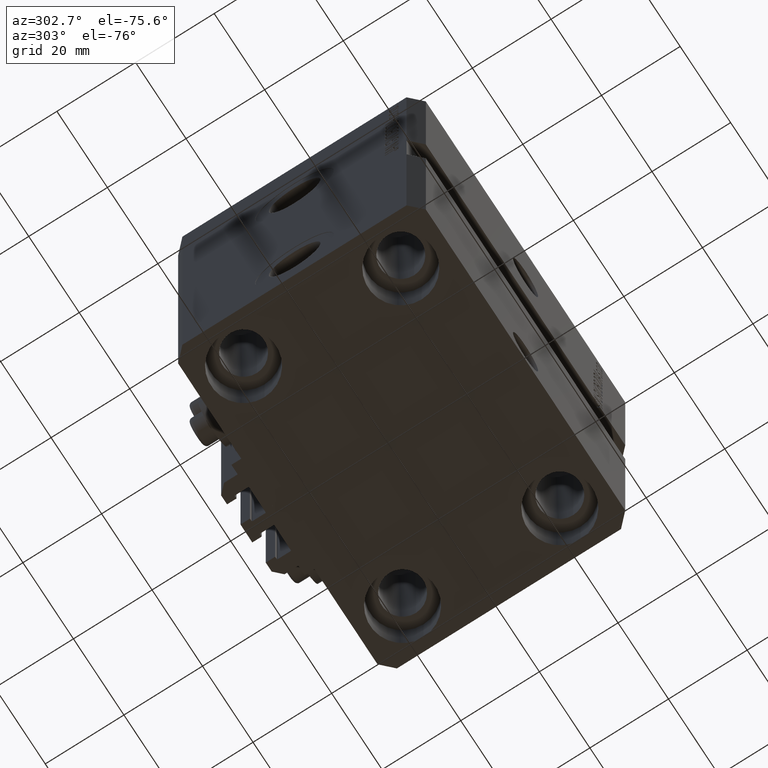
[diagram: clean part render]
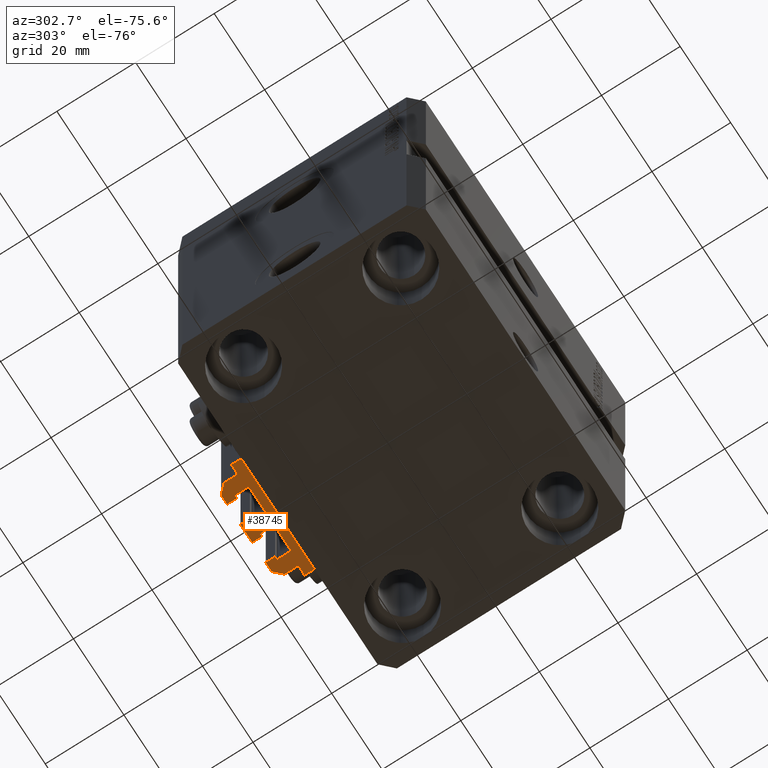
[diagram: same view with one face highlighted and labeled with its STEP entity id]
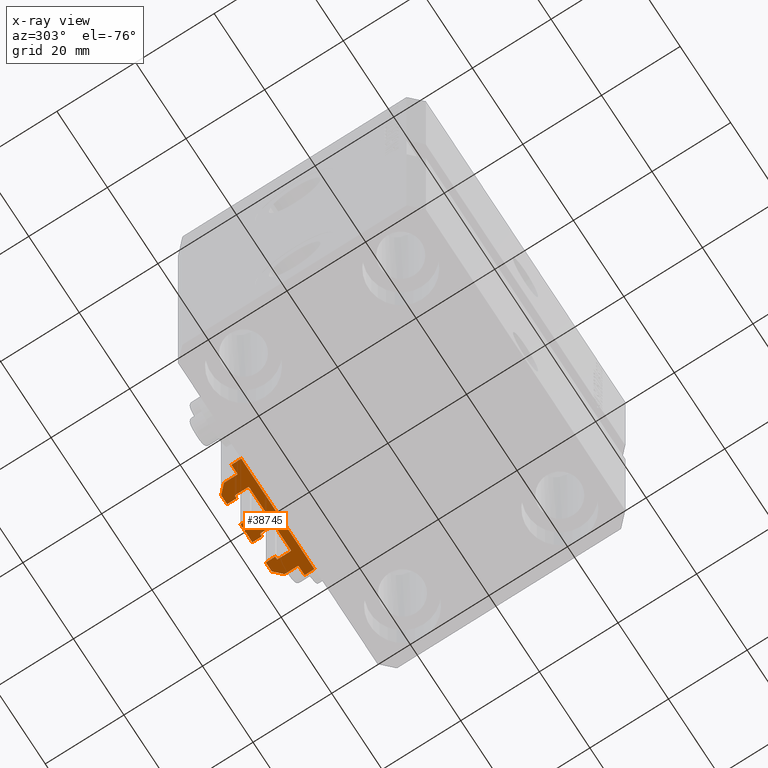
[diagram: x-ray of the same camera — body ghosted, the highlighted face saturated]
A machine part, auxiliary view. The second image highlights one B-rep face of the part: STEP entity #38745.
The next image is the same camera in x-ray: the body ghosted, the highlighted face saturated — about 0% of this face is hidden behind the body in this view.
In plain terms, the highlighted planar face has unit normal (0, 0, 1).
Its self-contained STEP definition (entity closure, byte-faithful):
#26 = DIRECTION ( 'NONE',  ( 1.000000000000000000, 0.000000000000000000, 0.000000000000000000 ) ) ;
#168 = EDGE_CURVE ( 'NONE', #10941, #5543, #37145, .T. ) ;
#237 = CARTESIAN_POINT ( 'NONE',  ( 1.800000000000000933, 37.10000000000000853, -93.00000000000000000 ) ) ;
#250 = CIRCLE ( 'NONE', #26289, 0.1999999999999994282 ) ;
#543 = VERTEX_POINT ( 'NONE', #24593 ) ;
#904 = VERTEX_POINT ( 'NONE', #21566 ) ;
#918 = EDGE_CURVE ( 'NONE', #19733, #44680, #3296, .T. ) ;
#937 = VECTOR ( 'NONE', #7527, 1000.000000000000000 ) ;
#1151 = CIRCLE ( 'NONE', #4978, 0.1999999999999996503 ) ;
#1344 = LINE ( 'NONE', #44890, #17115 ) ;
#1385 = LINE ( 'NONE', #34359, #42739 ) ;
#1897 = CARTESIAN_POINT ( 'NONE',  ( -12.00000000000000000, 37.49999999999999289, -93.00000000000000000 ) ) ;
#1911 = EDGE_CURVE ( 'NONE', #14663, #28280, #16781, .T. ) ;
#1923 = CARTESIAN_POINT ( 'NONE',  ( -8.400000000000000355, 36.89999999999999858, -93.00000000000000000 ) ) ;
#1964 = CARTESIAN_POINT ( 'NONE',  ( -1.800000000000000933, 37.10000000000000853, -93.00000000000000000 ) ) ;
#2005 = ORIENTED_EDGE ( 'NONE', *, *, #43675, .T. ) ;
#2328 = ORIENTED_EDGE ( 'NONE', *, *, #5247, .T. ) ;
#2785 = AXIS2_PLACEMENT_3D ( 'NONE', #36960, #26597, #4003 ) ;
#3296 = LINE ( 'NONE', #10745, #18934 ) ;
#3381 = CARTESIAN_POINT ( 'NONE',  ( -8.399999999999996803, 33.70000000000000284, -93.00000000000000000 ) ) ;
#3472 = DIRECTION ( 'NONE',  ( 1.000000000000000000, 0.000000000000000000, 0.000000000000000000 ) ) ;
#3614 = CARTESIAN_POINT ( 'NONE',  ( -1.600000000000000533, 36.90000000000000568, -93.00000000000000000 ) ) ;
#4003 = DIRECTION ( 'NONE',  ( 1.000000000000000000, 0.000000000000000000, 0.000000000000000000 ) ) ;
#4026 = DIRECTION ( 'NONE',  ( 1.000000000000000000, 0.000000000000000000, 0.000000000000000000 ) ) ;
#4306 = DIRECTION ( 'NONE',  ( 0.000000000000000000, 1.000000000000000000, 0.000000000000000000 ) ) ;
#4337 = ORIENTED_EDGE ( 'NONE', *, *, #1911, .F. ) ;
#4489 = DIRECTION ( 'NONE',  ( 0.000000000000000000, -1.000000000000000000, 0.000000000000000000 ) ) ;
#4514 = DIRECTION ( 'NONE',  ( 1.000000000000000000, 0.000000000000000000, 0.000000000000000000 ) ) ;
#4784 = LINE ( 'NONE', #23288, #24265 ) ;
#4808 = DIRECTION ( 'NONE',  ( -6.776263578034385456E-17, -1.000000000000000000, 0.000000000000000000 ) ) ;
#4929 = EDGE_CURVE ( 'NONE', #20309, #36339, #11621, .T. ) ;
#4978 = AXIS2_PLACEMENT_3D ( 'NONE', #42876, #23875, #28457 ) ;
#5045 = ORIENTED_EDGE ( 'NONE', *, *, #20154, .F. ) ;
#5052 = ORIENTED_EDGE ( 'NONE', *, *, #20314, .T. ) ;
#5247 = EDGE_CURVE ( 'NONE', #44437, #27181, #32833, .T. ) ;
#5419 = EDGE_CURVE ( 'NONE', #44437, #40624, #47351, .T. ) ;
#5543 = VERTEX_POINT ( 'NONE', #24225 ) ;
#5760 = LINE ( 'NONE', #30785, #18706 ) ;
#5820 = CARTESIAN_POINT ( 'NONE',  ( 1.600000000000001421, 33.70000000000000284, -93.00000000000000000 ) ) ;
#6019 = LINE ( 'NONE', #42104, #19618 ) ;
#6677 = EDGE_CURVE ( 'NONE', #45971, #14663, #37217, .T. ) ;
#6846 = DIRECTION ( 'NONE',  ( 0.000000000000000000, 0.000000000000000000, 1.000000000000000000 ) ) ;
#6892 = CIRCLE ( 'NONE', #32291, 0.2000000000000040079 ) ;
#7036 = ORIENTED_EDGE ( 'NONE', *, *, #23520, .T. ) ;
#7106 = VERTEX_POINT ( 'NONE', #7991 ) ;
#7224 = DIRECTION ( 'NONE',  ( -1.084202172485506406E-15, 1.000000000000000000, 0.000000000000000000 ) ) ;
#7431 = VECTOR ( 'NONE', #18827, 1000.000000000000000 ) ;
#7527 = DIRECTION ( 'NONE',  ( 0.000000000000000000, -1.000000000000000000, 0.000000000000000000 ) ) ;
#7604 = CIRCLE ( 'NONE', #13770, 0.2000000000000022593 ) ;
#7645 = VECTOR ( 'NONE', #27645, 1000.000000000000000 ) ;
#7866 = CARTESIAN_POINT ( 'NONE',  ( 1.800000000000000933, 37.10000000000000853, -93.00000000000000000 ) ) ;
#7991 = CARTESIAN_POINT ( 'NONE',  ( -14.50000000000000000, 31.50000000000000000, -93.00000000000000000 ) ) ;
#8101 = DIRECTION ( 'NONE',  ( 0.000000000000000000, 0.000000000000000000, 1.000000000000000000 ) ) ;
#8170 = ORIENTED_EDGE ( 'NONE', *, *, #20543, .T. ) ;
#8236 = VERTEX_POINT ( 'NONE', #39956 ) ;
#8830 = EDGE_CURVE ( 'NONE', #31734, #34366, #10341, .T. ) ;
#8839 = CARTESIAN_POINT ( 'NONE',  ( -2.350000000000003642, 39.50000000000000711, -93.00000000000000000 ) ) ;
#9118 = ORIENTED_EDGE ( 'NONE', *, *, #23211, .F. ) ;
#9174 = DIRECTION ( 'NONE',  ( 1.000000000000000000, 0.000000000000000000, 0.000000000000000000 ) ) ;
#9386 = VECTOR ( 'NONE', #4514, 1000.000000000000000 ) ;
#9633 = CARTESIAN_POINT ( 'NONE',  ( -2.350000000000003642, 39.50000000000000711, -93.00000000000000000 ) ) ;
#9727 = LINE ( 'NONE', #20797, #12485 ) ;
#9878 = VECTOR ( 'NONE', #17085, 1000.000000000000000 ) ;
#10123 = AXIS2_PLACEMENT_3D ( 'NONE', #45379, #8101, #4026 ) ;
#10341 = LINE ( 'NONE', #43298, #18310 ) ;
#10464 = CARTESIAN_POINT ( 'NONE',  ( 8.400000000000000355, 36.90000000000001279, -93.00000000000000000 ) ) ;
#10477 = DIRECTION ( 'NONE',  ( 1.000000000000000000, 0.000000000000000000, 0.000000000000000000 ) ) ;
#10588 = VERTEX_POINT ( 'NONE', #37880 ) ;
#10589 = ORIENTED_EDGE ( 'NONE', *, *, #34896, .T. ) ;
#10745 = CARTESIAN_POINT ( 'NONE',  ( -1.800000000000000933, 33.50000000000000000, -93.00000000000000000 ) ) ;
#10941 = VERTEX_POINT ( 'NONE', #23842 ) ;
#11149 = EDGE_CURVE ( 'NONE', #34366, #24841, #12972, .T. ) ;
#11231 = DIRECTION ( 'NONE',  ( 1.000000000000000000, 0.000000000000000000, 0.000000000000000000 ) ) ;
#11233 = ORIENTED_EDGE ( 'NONE', *, *, #40830, .F. ) ;
#11400 = CARTESIAN_POINT ( 'NONE',  ( -12.00000000000000000, 34.19999999999999574, -93.00000000000000000 ) ) ;
#11621 = LINE ( 'NONE', #24707, #7431 ) ;
#11688 = VECTOR ( 'NONE', #20474, 1000.000000000000000 ) ;
#12076 = VECTOR ( 'NONE', #32934, 1000.000000000000000 ) ;
#12352 = ORIENTED_EDGE ( 'NONE', *, *, #17376, .F. ) ;
#12384 = CARTESIAN_POINT ( 'NONE',  ( 8.199999999999999289, 33.50000000000000000, -93.00000000000000000 ) ) ;
#12438 = ORIENTED_EDGE ( 'NONE', *, *, #168, .F. ) ;
#12485 = VECTOR ( 'NONE', #35725, 1000.000000000000000 ) ;
#12790 = LINE ( 'NONE', #34937, #11688 ) ;
#12972 = LINE ( 'NONE', #1897, #7645 ) ;
#13150 = VERTEX_POINT ( 'NONE', #46231 ) ;
#13315 = VECTOR ( 'NONE', #4306, 1000.000000000000000 ) ;
#13395 = VERTEX_POINT ( 'NONE', #36824 ) ;
#13713 = DIRECTION ( 'NONE',  ( 0.000000000000000000, 0.000000000000000000, 1.000000000000000000 ) ) ;
#13770 = AXIS2_PLACEMENT_3D ( 'NONE', #46388, #45679, #38715 ) ;
#13955 = ORIENTED_EDGE ( 'NONE', *, *, #35226, .T. ) ;
#14091 = LINE ( 'NONE', #10464, #24472 ) ;
#14104 = LINE ( 'NONE', #43435, #34849 ) ;
#14417 = ORIENTED_EDGE ( 'NONE', *, *, #15880, .T. ) ;
#14478 = VERTEX_POINT ( 'NONE', #43815 ) ;
#14663 = VERTEX_POINT ( 'NONE', #35141 ) ;
#14972 = DIRECTION ( 'NONE',  ( -1.000000000000000000, 0.000000000000000000, 0.000000000000000000 ) ) ;
#15169 = DIRECTION ( 'NONE',  ( 0.000000000000000000, 0.000000000000000000, 1.000000000000000000 ) ) ;
#15707 = DIRECTION ( 'NONE',  ( 1.000000000000000000, 0.000000000000000000, 0.000000000000000000 ) ) ;
#15880 = EDGE_CURVE ( 'NONE', #13395, #44680, #37008, .T. ) ;
#16059 = DIRECTION ( 'NONE',  ( -0.7071067811865474617, 0.7071067811865474617, 0.000000000000000000 ) ) ;
#16114 = CARTESIAN_POINT ( 'NONE',  ( 1.800000000000000933, 33.70000000000000284, -93.00000000000000000 ) ) ;
#16609 = ORIENTED_EDGE ( 'NONE', *, *, #45486, .F. ) ;
#16781 = LINE ( 'NONE', #43001, #25918 ) ;
#16798 = EDGE_LOOP ( 'NONE', ( #35262, #28576, #34391, #46862, #25670, #12352, #23879, #40328, #10589, #40625, #14417, #43201, #2005, #24271, #8170, #27630, #41058, #39908, #4337, #18746, #5052, #19704, #2328, #26962, #7036, #21591, #13955, #12438, #11233, #5045, #9118, #16609, #30713, #29803, #32406, #37565 ) ) ;
#17032 = VERTEX_POINT ( 'NONE', #12384 ) ;
#17085 = DIRECTION ( 'NONE',  ( 1.807003620809174632E-16, -1.000000000000000000, 0.000000000000000000 ) ) ;
#17115 = VECTOR ( 'NONE', #4489, 1000.000000000000000 ) ;
#17376 = EDGE_CURVE ( 'NONE', #43257, #31734, #5760, .T. ) ;
#17632 = CARTESIAN_POINT ( 'NONE',  ( 12.00000000000000178, 34.20000000000002416, -93.00000000000000000 ) ) ;
#17668 = CARTESIAN_POINT ( 'NONE',  ( 9.999999999999998224, 39.50000000000002132, -93.00000000000000000 ) ) ;
#17997 = CARTESIAN_POINT ( 'NONE',  ( 1.600000000000000533, 33.70000000000000284, -93.00000000000000000 ) ) ;
#18182 = DIRECTION ( 'NONE',  ( -1.000000000000000000, 0.000000000000000000, 0.000000000000000000 ) ) ;
#18310 = VECTOR ( 'NONE', #25014, 999.9999999999998863 ) ;
#18706 = VECTOR ( 'NONE', #14972, 1000.000000000000000 ) ;
#18746 = ORIENTED_EDGE ( 'NONE', *, *, #6677, .F. ) ;
#18827 = DIRECTION ( 'NONE',  ( -1.000000000000000000, 0.000000000000000000, 0.000000000000000000 ) ) ;
#18934 = VECTOR ( 'NONE', #18182, 1000.000000000000000 ) ;
#19200 = LINE ( 'NONE', #40862, #13315 ) ;
#19519 = VERTEX_POINT ( 'NONE', #1923 ) ;
#19618 = VECTOR ( 'NONE', #24060, 1000.000000000000000 ) ;
#19704 = ORIENTED_EDGE ( 'NONE', *, *, #5419, .F. ) ;
#19733 = VERTEX_POINT ( 'NONE', #35285 ) ;
#20154 = EDGE_CURVE ( 'NONE', #10588, #13150, #35013, .T. ) ;
#20309 = VERTEX_POINT ( 'NONE', #29206 ) ;
#20314 = EDGE_CURVE ( 'NONE', #45971, #40624, #24962, .T. ) ;
#20474 = DIRECTION ( 'NONE',  ( -1.000000000000000000, 0.000000000000000000, 0.000000000000000000 ) ) ;
#20543 = EDGE_CURVE ( 'NONE', #8236, #44546, #1151, .T. ) ;
#20797 = CARTESIAN_POINT ( 'NONE',  ( -2.350000000000003197, 37.10000000000000853, -93.00000000000000000 ) ) ;
#20858 = EDGE_CURVE ( 'NONE', #31119, #20309, #6019, .T. ) ;
#21192 = LINE ( 'NONE', #3381, #31419 ) ;
#21566 = CARTESIAN_POINT ( 'NONE',  ( -7.650000000000002132, 37.09999999999999432, -93.00000000000000000 ) ) ;
#21591 = ORIENTED_EDGE ( 'NONE', *, *, #28369, .F. ) ;
#21607 = CIRCLE ( 'NONE', #37003, 0.2000000000000040079 ) ;
#21623 = CARTESIAN_POINT ( 'NONE',  ( 8.200000000000001066, 36.90000000000001279, -93.00000000000000000 ) ) ;
#21973 = EDGE_CURVE ( 'NONE', #37124, #28280, #4784, .T. ) ;
#22046 = VERTEX_POINT ( 'NONE', #22808 ) ;
#22280 = CARTESIAN_POINT ( 'NONE',  ( -2.350000000000003197, 37.10000000000000853, -93.00000000000000000 ) ) ;
#22808 = CARTESIAN_POINT ( 'NONE',  ( 11.99999999999999822, 34.20000000000002416, -93.00000000000000000 ) ) ;
#23211 = EDGE_CURVE ( 'NONE', #23262, #10588, #1385, .T. ) ;
#23262 = VERTEX_POINT ( 'NONE', #34838 ) ;
#23288 = CARTESIAN_POINT ( 'NONE',  ( -2.350000000000003642, 39.50000000000000711, -93.00000000000000000 ) ) ;
#23520 = EDGE_CURVE ( 'NONE', #17032, #37179, #46584, .T. ) ;
#23602 = CARTESIAN_POINT ( 'NONE',  ( -12.20000000000000107, 34.19999999999999574, -93.00000000000000000 ) ) ;
#23608 = VECTOR ( 'NONE', #11231, 1000.000000000000000 ) ;
#23842 = CARTESIAN_POINT ( 'NONE',  ( 7.649999999999998579, 37.10000000000002274, -93.00000000000000000 ) ) ;
#23875 = DIRECTION ( 'NONE',  ( 0.000000000000000000, 0.000000000000000000, 1.000000000000000000 ) ) ;
#23879 = ORIENTED_EDGE ( 'NONE', *, *, #42339, .F. ) ;
#24060 = DIRECTION ( 'NONE',  ( 0.000000000000000000, 1.000000000000000000, 0.000000000000000000 ) ) ;
#24076 = EDGE_CURVE ( 'NONE', #7106, #31119, #46478, .T. ) ;
#24199 = AXIS2_PLACEMENT_3D ( 'NONE', #28972, #6846, #3472 ) ;
#24225 = CARTESIAN_POINT ( 'NONE',  ( 8.200000000000001066, 37.10000000000002274, -93.00000000000000000 ) ) ;
#24265 = VECTOR ( 'NONE', #38221, 1000.000000000000000 ) ;
#24271 = ORIENTED_EDGE ( 'NONE', *, *, #40095, .F. ) ;
#24287 = DIRECTION ( 'NONE',  ( 1.000000000000000000, 0.000000000000000000, 0.000000000000000000 ) ) ;
#24472 = VECTOR ( 'NONE', #35983, 1000.000000000000000 ) ;
#24593 = CARTESIAN_POINT ( 'NONE',  ( -14.50000000000000000, 33.99999999999998579, -93.00000000000000000 ) ) ;
#24595 = CARTESIAN_POINT ( 'NONE',  ( -8.199999999999999289, 36.89999999999999858, -93.00000000000000000 ) ) ;
#24707 = CARTESIAN_POINT ( 'NONE',  ( 14.49999999999999645, 34.00000000000001421, -93.00000000000000000 ) ) ;
#24841 = VERTEX_POINT ( 'NONE', #11400 ) ;
#24962 = CIRCLE ( 'NONE', #24199, 0.1999999999999998723 ) ;
#25014 = DIRECTION ( 'NONE',  ( -0.7071067811865472397, -0.7071067811865479058, 0.000000000000000000 ) ) ;
#25670 = ORIENTED_EDGE ( 'NONE', *, *, #8830, .F. ) ;
#25741 = VERTEX_POINT ( 'NONE', #30075 ) ;
#25918 = VECTOR ( 'NONE', #31477, 1000.000000000000000 ) ;
#26050 = CARTESIAN_POINT ( 'NONE',  ( 7.649999999999998579, 39.50000000000002132, -93.00000000000000000 ) ) ;
#26289 = AXIS2_PLACEMENT_3D ( 'NONE', #42716, #43208, #10477 ) ;
#26597 = DIRECTION ( 'NONE',  ( 0.000000000000000000, 0.000000000000000000, 1.000000000000000000 ) ) ;
#26854 = CARTESIAN_POINT ( 'NONE',  ( 8.400000000000003908, 36.90000000000001279, -93.00000000000000000 ) ) ;
#26949 = DIRECTION ( 'NONE',  ( 0.000000000000000000, 0.000000000000000000, 1.000000000000000000 ) ) ;
#26962 = ORIENTED_EDGE ( 'NONE', *, *, #44543, .F. ) ;
#27181 = VERTEX_POINT ( 'NONE', #32654 ) ;
#27462 = DIRECTION ( 'NONE',  ( 0.000000000000000000, 0.000000000000000000, 1.000000000000000000 ) ) ;
#27630 = ORIENTED_EDGE ( 'NONE', *, *, #41740, .F. ) ;
#27645 = DIRECTION ( 'NONE',  ( 0.000000000000000000, -1.000000000000000000, 0.000000000000000000 ) ) ;
#27698 = DIRECTION ( 'NONE',  ( 0.000000000000000000, 0.000000000000000000, 1.000000000000000000 ) ) ;
#28028 = DIRECTION ( 'NONE',  ( -1.000000000000000000, 0.000000000000000000, 0.000000000000000000 ) ) ;
#28280 = VERTEX_POINT ( 'NONE', #35026 ) ;
#28369 = EDGE_CURVE ( 'NONE', #30734, #37179, #14091, .T. ) ;
#28456 = DIRECTION ( 'NONE',  ( 1.000000000000000000, 0.000000000000000000, 0.000000000000000000 ) ) ;
#28457 = DIRECTION ( 'NONE',  ( 1.000000000000000000, 0.000000000000000000, 0.000000000000000000 ) ) ;
#28576 = ORIENTED_EDGE ( 'NONE', *, *, #43760, .F. ) ;
#28972 = CARTESIAN_POINT ( 'NONE',  ( 1.800000000000000933, 36.90000000000000568, -93.00000000000000000 ) ) ;
#28973 = EDGE_CURVE ( 'NONE', #37124, #30680, #42589, .T. ) ;
#29206 = CARTESIAN_POINT ( 'NONE',  ( 14.49999999999999645, 34.00000000000001421, -93.00000000000000000 ) ) ;
#29304 = CARTESIAN_POINT ( 'NONE',  ( -8.199999999999999289, 37.09999999999999432, -93.00000000000000000 ) ) ;
#29803 = ORIENTED_EDGE ( 'NONE', *, *, #4929, .F. ) ;
#30075 = CARTESIAN_POINT ( 'NONE',  ( -12.20000000000000107, 33.99999999999998579, -93.00000000000000000 ) ) ;
#30680 = VERTEX_POINT ( 'NONE', #22280 ) ;
#30713 = ORIENTED_EDGE ( 'NONE', *, *, #32892, .T. ) ;
#30734 = VERTEX_POINT ( 'NONE', #26854 ) ;
#30785 = CARTESIAN_POINT ( 'NONE',  ( -7.650000000000002132, 39.49999999999999289, -93.00000000000000000 ) ) ;
#31069 = FACE_OUTER_BOUND ( 'NONE', #16798, .T. ) ;
#31119 = VERTEX_POINT ( 'NONE', #33552 ) ;
#31405 = VERTEX_POINT ( 'NONE', #46981 ) ;
#31419 = VECTOR ( 'NONE', #7224, 1000.000000000000000 ) ;
#31477 = DIRECTION ( 'NONE',  ( 0.000000000000000000, 1.000000000000000000, 0.000000000000000000 ) ) ;
#31734 = VERTEX_POINT ( 'NONE', #41283 ) ;
#32291 = AXIS2_PLACEMENT_3D ( 'NONE', #21623, #13713, #24287 ) ;
#32406 = ORIENTED_EDGE ( 'NONE', *, *, #20858, .F. ) ;
#32541 = CARTESIAN_POINT ( 'NONE',  ( -14.50000000000000000, 31.50000000000000000, -93.00000000000000000 ) ) ;
#32654 = CARTESIAN_POINT ( 'NONE',  ( 1.800000000000000933, 33.50000000000000000, -93.00000000000000000 ) ) ;
#32657 = EDGE_CURVE ( 'NONE', #13395, #19519, #21192, .T. ) ;
#32833 = CIRCLE ( 'NONE', #36668, 0.1999999999999998723 ) ;
#32858 = DIRECTION ( 'NONE',  ( -1.000000000000000000, 0.000000000000000000, 0.000000000000000000 ) ) ;
#32892 = EDGE_CURVE ( 'NONE', #22046, #36339, #7604, .T. ) ;
#32934 = DIRECTION ( 'NONE',  ( 0.000000000000000000, 1.000000000000000000, 0.000000000000000000 ) ) ;
#33027 = CIRCLE ( 'NONE', #41464, 0.1999999999999987899 ) ;
#33042 = LINE ( 'NONE', #26050, #937 ) ;
#33162 = LINE ( 'NONE', #29304, #9386 ) ;
#33407 = VECTOR ( 'NONE', #28028, 1000.000000000000000 ) ;
#33552 = CARTESIAN_POINT ( 'NONE',  ( 14.49999999999999645, 31.50000000000000000, -93.00000000000000000 ) ) ;
#33818 = CARTESIAN_POINT ( 'NONE',  ( 1.600000000000000533, 36.90000000000000568, -93.00000000000000000 ) ) ;
#34022 = VECTOR ( 'NONE', #35699, 1000.000000000000000 ) ;
#34359 = CARTESIAN_POINT ( 'NONE',  ( 12.00000000000000000, 37.50000000000002132, -93.00000000000000000 ) ) ;
#34366 = VERTEX_POINT ( 'NONE', #38499 ) ;
#34391 = ORIENTED_EDGE ( 'NONE', *, *, #39850, .T. ) ;
#34418 = DIRECTION ( 'NONE',  ( 1.000000000000000000, 0.000000000000000000, 0.000000000000000000 ) ) ;
#34445 = DIRECTION ( 'NONE',  ( 1.000000000000000000, 0.000000000000000000, -0.000000000000000000 ) ) ;
#34838 = CARTESIAN_POINT ( 'NONE',  ( 12.00000000000000000, 37.50000000000002132, -93.00000000000000000 ) ) ;
#34849 = VECTOR ( 'NONE', #32858, 1000.000000000000000 ) ;
#34896 = EDGE_CURVE ( 'NONE', #31405, #19519, #33027, .T. ) ;
#34925 = CARTESIAN_POINT ( 'NONE',  ( 12.20000000000000107, 34.20000000000002416, -93.00000000000000000 ) ) ;
#34937 = CARTESIAN_POINT ( 'NONE',  ( 8.199999999999999289, 33.50000000000000000, -93.00000000000000000 ) ) ;
#35013 = LINE ( 'NONE', #17668, #33407 ) ;
#35026 = CARTESIAN_POINT ( 'NONE',  ( 2.349999999999999645, 39.50000000000000711, -93.00000000000000000 ) ) ;
#35141 = CARTESIAN_POINT ( 'NONE',  ( 2.349999999999999645, 37.10000000000000853, -93.00000000000000000 ) ) ;
#35226 = EDGE_CURVE ( 'NONE', #30734, #5543, #6892, .T. ) ;
#35262 = ORIENTED_EDGE ( 'NONE', *, *, #42719, .F. ) ;
#35285 = CARTESIAN_POINT ( 'NONE',  ( -1.800000000000000933, 33.50000000000000000, -93.00000000000000000 ) ) ;
#35699 = DIRECTION ( 'NONE',  ( -5.256737805990328981E-16, 1.000000000000000000, 0.000000000000000000 ) ) ;
#35725 = DIRECTION ( 'NONE',  ( 1.000000000000000000, 0.000000000000000000, 0.000000000000000000 ) ) ;
#35937 = LINE ( 'NONE', #17632, #34022 ) ;
#35983 = DIRECTION ( 'NONE',  ( -5.421010862427508365E-16, -1.000000000000000000, 0.000000000000000000 ) ) ;
#36339 = VERTEX_POINT ( 'NONE', #39566 ) ;
#36574 = LINE ( 'NONE', #3614, #39356 ) ;
#36668 = AXIS2_PLACEMENT_3D ( 'NONE', #16114, #26949, #34418 ) ;
#36824 = CARTESIAN_POINT ( 'NONE',  ( -8.399999999999996803, 33.70000000000000284, -93.00000000000000000 ) ) ;
#36960 = CARTESIAN_POINT ( 'NONE',  ( 8.199999999999999289, 33.70000000000000284, -93.00000000000000000 ) ) ;
#37003 = AXIS2_PLACEMENT_3D ( 'NONE', #23602, #27462, #9174 ) ;
#37008 = CIRCLE ( 'NONE', #10123, 0.1999999999999987899 ) ;
#37124 = VERTEX_POINT ( 'NONE', #8839 ) ;
#37145 = LINE ( 'NONE', #44576, #41187 ) ;
#37179 = VERTEX_POINT ( 'NONE', #47244 ) ;
#37217 = LINE ( 'NONE', #7866, #23608 ) ;
#37525 = CARTESIAN_POINT ( 'NONE',  ( -8.199999999999997513, 33.50000000000000000, -93.00000000000000000 ) ) ;
#37565 = ORIENTED_EDGE ( 'NONE', *, *, #24076, .F. ) ;
#37880 = CARTESIAN_POINT ( 'NONE',  ( 9.999999999999998224, 39.50000000000002132, -93.00000000000000000 ) ) ;
#38221 = DIRECTION ( 'NONE',  ( 1.000000000000000000, 0.000000000000000000, 0.000000000000000000 ) ) ;
#38499 = CARTESIAN_POINT ( 'NONE',  ( -12.00000000000000000, 37.49999999999999289, -93.00000000000000000 ) ) ;
#38715 = DIRECTION ( 'NONE',  ( 1.000000000000000000, 0.000000000000000000, 0.000000000000000000 ) ) ;
#38745 = ADVANCED_FACE ( 'NONE', ( #31069 ), #42124, .F. ) ;
#39356 = VECTOR ( 'NONE', #4808, 1000.000000000000000 ) ;
#39566 = CARTESIAN_POINT ( 'NONE',  ( 12.20000000000000107, 34.00000000000001421, -93.00000000000000000 ) ) ;
#39850 = EDGE_CURVE ( 'NONE', #25741, #24841, #21607, .T. ) ;
#39908 = ORIENTED_EDGE ( 'NONE', *, *, #21973, .T. ) ;
#39956 = CARTESIAN_POINT ( 'NONE',  ( -1.600000000000001421, 36.90000000000000568, -93.00000000000000000 ) ) ;
#40095 = EDGE_CURVE ( 'NONE', #8236, #14478, #36574, .T. ) ;
#40328 = ORIENTED_EDGE ( 'NONE', *, *, #41070, .F. ) ;
#40624 = VERTEX_POINT ( 'NONE', #33818 ) ;
#40625 = ORIENTED_EDGE ( 'NONE', *, *, #32657, .F. ) ;
#40801 = AXIS2_PLACEMENT_3D ( 'NONE', #34925, #27698, #34445 ) ;
#40830 = EDGE_CURVE ( 'NONE', #13150, #10941, #33042, .T. ) ;
#40862 = CARTESIAN_POINT ( 'NONE',  ( -7.650000000000002132, 37.09999999999999432, -93.00000000000000000 ) ) ;
#41058 = ORIENTED_EDGE ( 'NONE', *, *, #28973, .F. ) ;
#41070 = EDGE_CURVE ( 'NONE', #31405, #904, #33162, .T. ) ;
#41187 = VECTOR ( 'NONE', #15707, 1000.000000000000000 ) ;
#41283 = CARTESIAN_POINT ( 'NONE',  ( -10.00000000000000000, 39.49999999999999289, -93.00000000000000000 ) ) ;
#41464 = AXIS2_PLACEMENT_3D ( 'NONE', #24595, #15169, #26 ) ;
#41649 = CARTESIAN_POINT ( 'NONE',  ( -7.650000000000002132, 39.49999999999999289, -93.00000000000000000 ) ) ;
#41740 = EDGE_CURVE ( 'NONE', #30680, #44546, #9727, .T. ) ;
#42104 = CARTESIAN_POINT ( 'NONE',  ( 14.49999999999999645, 31.50000000000000000, -93.00000000000000000 ) ) ;
#42124 = PLANE ( 'NONE',  #40801 ) ;
#42339 = EDGE_CURVE ( 'NONE', #904, #43257, #19200, .T. ) ;
#42589 = LINE ( 'NONE', #9633, #9878 ) ;
#42716 = CARTESIAN_POINT ( 'NONE',  ( -1.800000000000000933, 33.70000000000000284, -93.00000000000000000 ) ) ;
#42719 = EDGE_CURVE ( 'NONE', #543, #7106, #1344, .T. ) ;
#42739 = VECTOR ( 'NONE', #16059, 1000.000000000000114 ) ;
#42876 = CARTESIAN_POINT ( 'NONE',  ( -1.800000000000000933, 36.90000000000000568, -93.00000000000000000 ) ) ;
#43001 = CARTESIAN_POINT ( 'NONE',  ( 2.349999999999999645, 37.10000000000000853, -93.00000000000000000 ) ) ;
#43201 = ORIENTED_EDGE ( 'NONE', *, *, #918, .F. ) ;
#43208 = DIRECTION ( 'NONE',  ( 0.000000000000000000, 0.000000000000000000, 1.000000000000000000 ) ) ;
#43257 = VERTEX_POINT ( 'NONE', #41649 ) ;
#43298 = CARTESIAN_POINT ( 'NONE',  ( -10.00000000000000000, 39.49999999999999289, -93.00000000000000000 ) ) ;
#43435 = CARTESIAN_POINT ( 'NONE',  ( -12.20000000000000107, 33.99999999999998579, -93.00000000000000000 ) ) ;
#43675 = EDGE_CURVE ( 'NONE', #19733, #14478, #250, .T. ) ;
#43760 = EDGE_CURVE ( 'NONE', #25741, #543, #14104, .T. ) ;
#43815 = CARTESIAN_POINT ( 'NONE',  ( -1.600000000000000755, 33.70000000000000284, -93.00000000000000000 ) ) ;
#44437 = VERTEX_POINT ( 'NONE', #5820 ) ;
#44543 = EDGE_CURVE ( 'NONE', #17032, #27181, #12790, .T. ) ;
#44546 = VERTEX_POINT ( 'NONE', #1964 ) ;
#44576 = CARTESIAN_POINT ( 'NONE',  ( 7.649999999999998579, 37.10000000000002274, -93.00000000000000000 ) ) ;
#44680 = VERTEX_POINT ( 'NONE', #37525 ) ;
#44890 = CARTESIAN_POINT ( 'NONE',  ( -14.50000000000000000, 33.99999999999998579, -93.00000000000000000 ) ) ;
#45067 = VECTOR ( 'NONE', #28456, 1000.000000000000000 ) ;
#45379 = CARTESIAN_POINT ( 'NONE',  ( -8.199999999999997513, 33.70000000000000284, -93.00000000000000000 ) ) ;
#45486 = EDGE_CURVE ( 'NONE', #22046, #23262, #35937, .T. ) ;
#45679 = DIRECTION ( 'NONE',  ( 0.000000000000000000, 0.000000000000000000, 1.000000000000000000 ) ) ;
#45971 = VERTEX_POINT ( 'NONE', #237 ) ;
#46231 = CARTESIAN_POINT ( 'NONE',  ( 7.649999999999998579, 39.50000000000002132, -93.00000000000000000 ) ) ;
#46388 = CARTESIAN_POINT ( 'NONE',  ( 12.20000000000000107, 34.20000000000002416, -93.00000000000000000 ) ) ;
#46478 = LINE ( 'NONE', #32541, #45067 ) ;
#46584 = CIRCLE ( 'NONE', #2785, 0.1999999999999987899 ) ;
#46862 = ORIENTED_EDGE ( 'NONE', *, *, #11149, .F. ) ;
#46981 = CARTESIAN_POINT ( 'NONE',  ( -8.199999999999999289, 37.09999999999999432, -93.00000000000000000 ) ) ;
#47244 = CARTESIAN_POINT ( 'NONE',  ( 8.400000000000000355, 33.70000000000000995, -93.00000000000000000 ) ) ;
#47351 = LINE ( 'NONE', #17997, #12076 ) ;